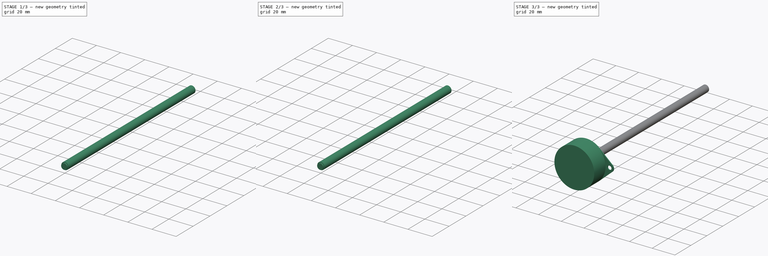
[diagram: build sequence overview — one tinted view per stage of 3, left to right]
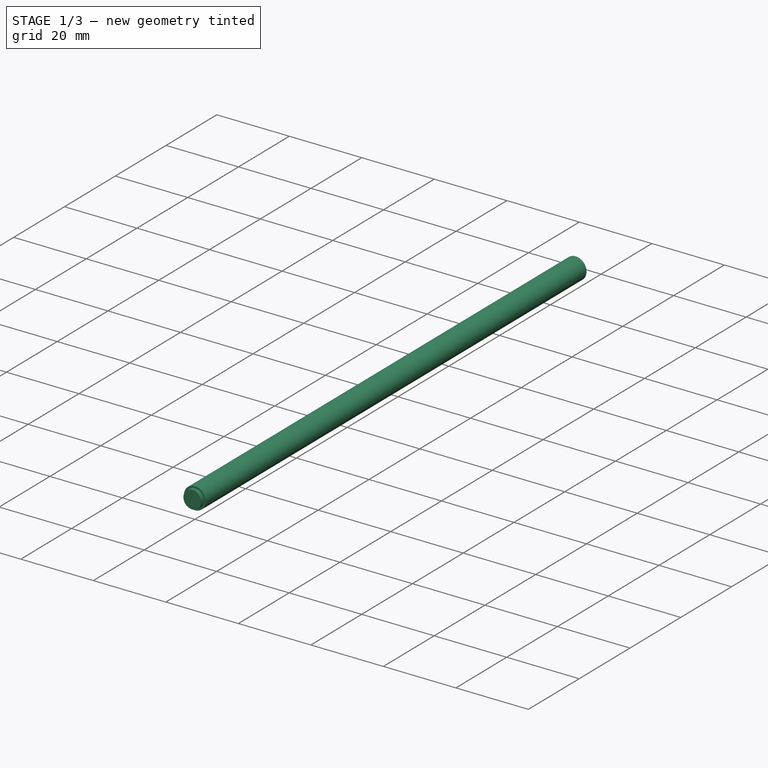
[diagram: stage 1 of 3 — iso view after this stage's code; geometry added in this stage tinted green]
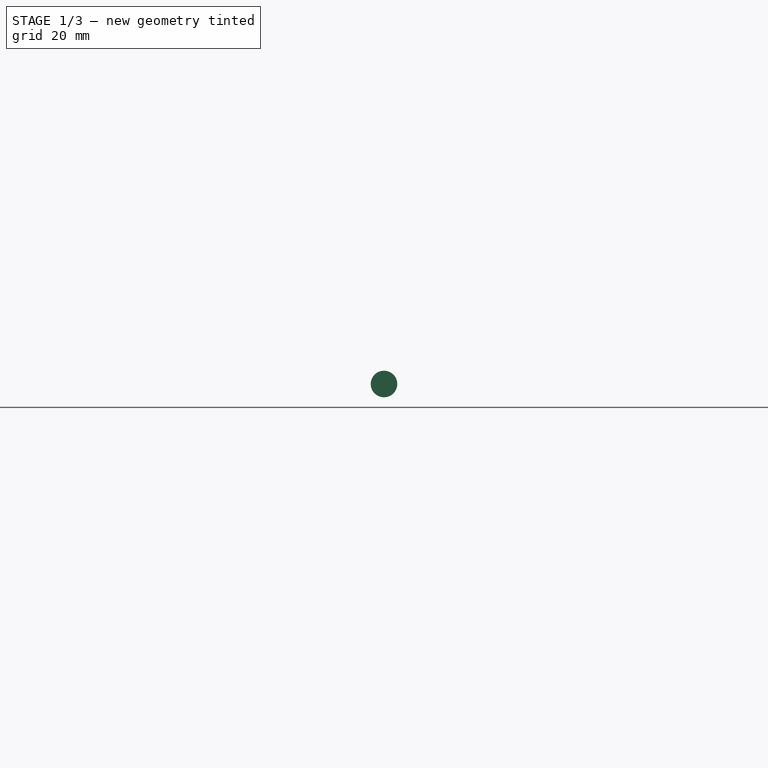
[diagram: stage 1 of 3 — front view after this stage's code; geometry added in this stage tinted green]
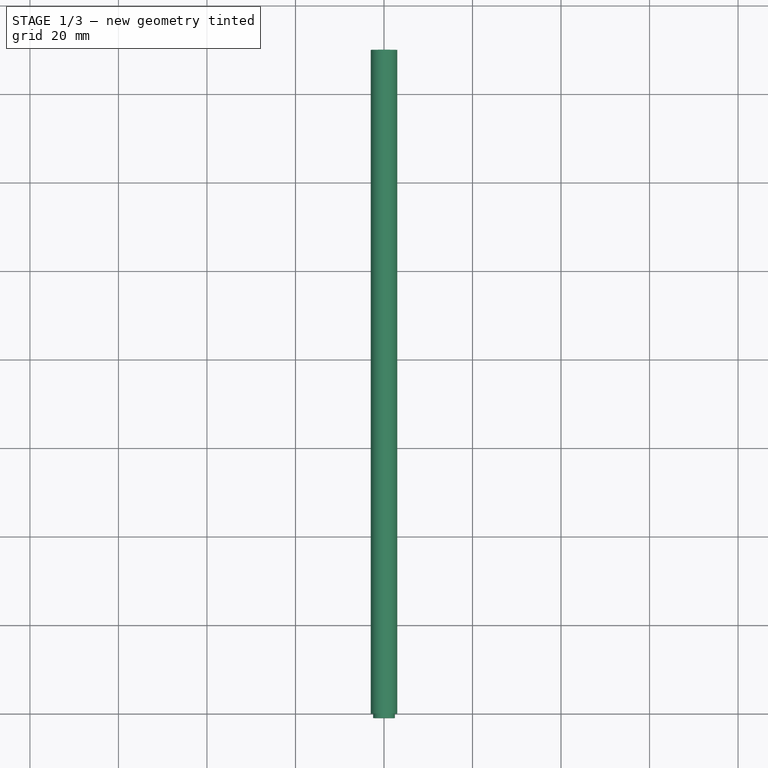
[diagram: stage 1 of 3 — top view after this stage's code; geometry added in this stage tinted green]
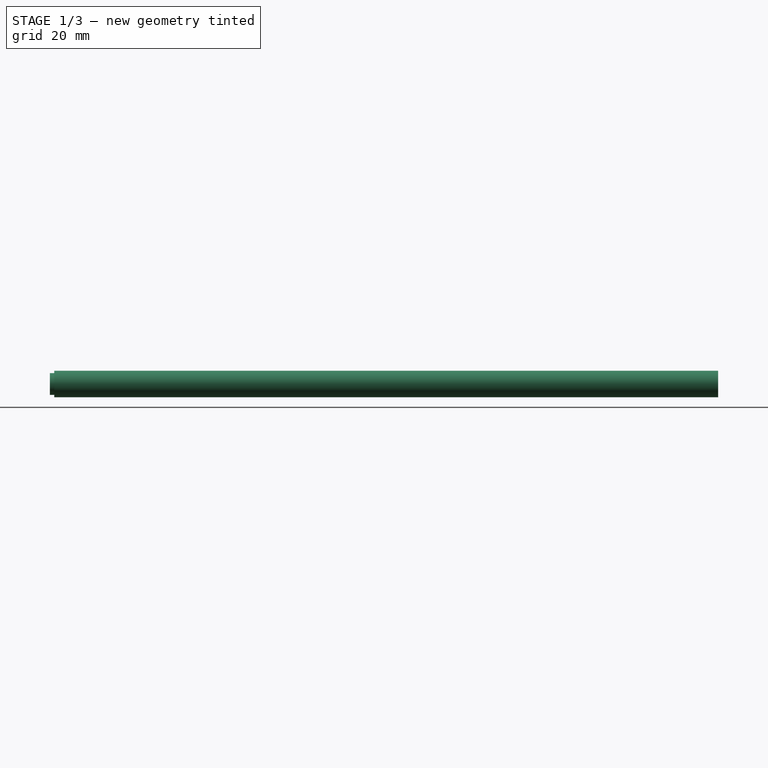
[diagram: stage 1 of 3 — right view after this stage's code; geometry added in this stage tinted green]
FCSTD DOCUMENT  (FreeCAD 0.19R24012 (Git))
Label: EL-axis v4
License: All rights reserved
LicenseURL: http://en.wikipedia.org/wiki/All_rights_reserved
objects: Sketcher::SketchObject×5, PartDesign::Body×4, PartDesign::Pad×3, PartDesign::Revolution×1, PartDesign::FeatureBase×1, Part::FeaturePython×1, App::Part×1
note: 19 computed .brp shape members not serialized (recipe doc carries the construction recipe); baked Part::Feature solids carry a one-line shape summary decoded from their .brp

FEATURE [PartDesign::Body] Body  label="bd_pipe_left"
  Group = -> [Clone]
  Origin = -> Origin031
  Placement = pos=(20,0,0) rot=(0,0,1;0rad)
  Tip = -> Clone
  expr: .Placement.Base.x = <<p>>.Constraints.pipes_dist / 2
FEATURE [Sketcher::SketchObject] Sketch019
  FullyConstrained = false
  MapMode = 5
  Placement = pos=(0,0,0) rot=(1,0,0;1.5708rad)
  sketch-geometry (2):
    g0: Circle CenterX=0 CenterY=0 CenterZ=0 NormalX=0 NormalY=0 NormalZ=1 AngleXU=0 Radius=2.025
    g1: Circle CenterX=0 CenterY=0 CenterZ=0 NormalX=0 NormalY=0 NormalZ=1 AngleXU=0 Radius=3
  constraints (4):
    c: Coincident(g0,g-1)
    c: Coincident(g1,g0)
    c: Diameter(g1) = 6
    c: Diameter(g0) = 4.05
FEATURE [PartDesign::Pad] Pad008
  Direction = (1,1,1)
  Length = 150
  Length2 = 100
  Placement = pos=(0,0,0) rot=(1,0,0;1.5708rad)
  Profile = -> Sketch019
  Reversed = true
  Type = 0
FEATURE [PartDesign::Body] Body024  label="bd_pipe_right"
  Group = -> [Sketch019,Pad008]
  Origin = -> Origin032
  Placement = pos=(-20,0,0) rot=(0,0,1;0rad)
  Tip = -> Pad008
  expr: .Placement.Base.x = -<<p>>.Constraints.pipes_dist / 2
FEATURE [Part::FeaturePython] ScrewTap  label="M6x150.0-ScrewTap"  # Fasteners workbench fastener (typed FeaturePython)
  Placement = pos=(0,0,0) rot=(1,0,0;1.5708rad)
  diameter = 8
  invert = false
  length = 150
  matchOuter = false
  offset = 0
  thread = false
  expr: length = 150
FEATURE [App::Part] Part  label="Parts"
  Group = -> [Body023,Body013,ScrewTap]
  Origin = -> Origin
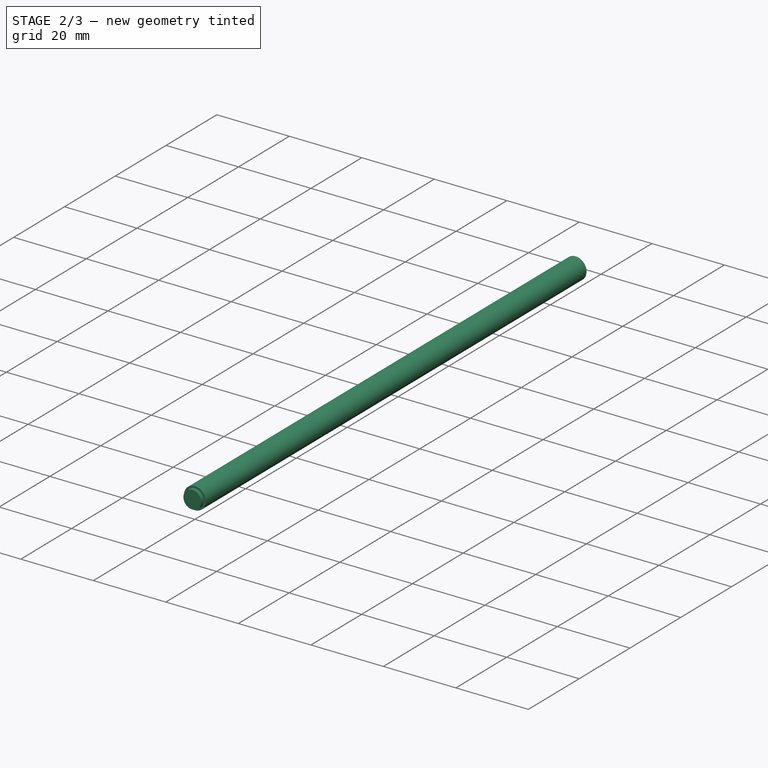
[diagram: stage 2 of 3 — iso view after this stage's code; geometry added in this stage tinted green]
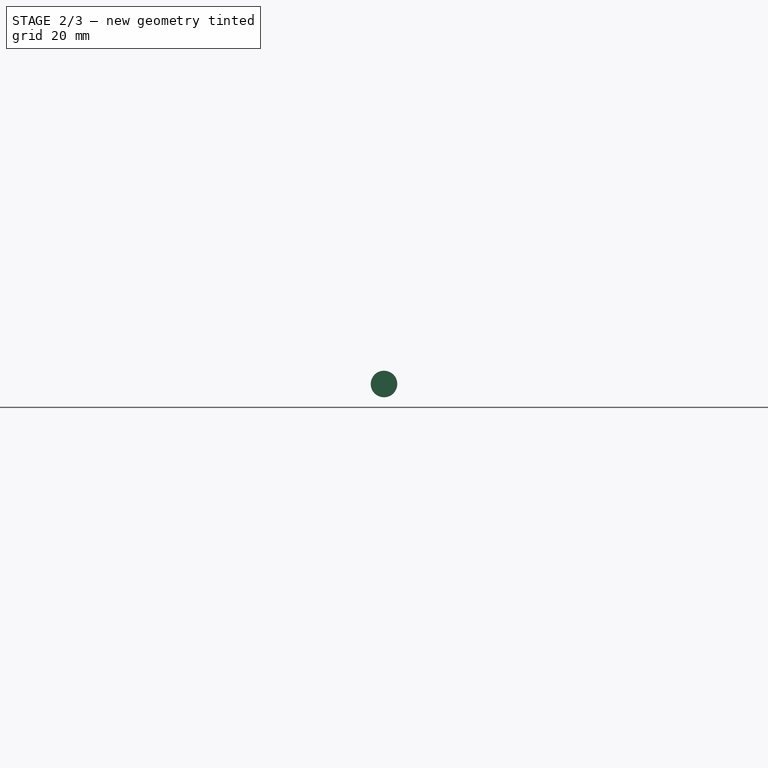
[diagram: stage 2 of 3 — front view after this stage's code; geometry added in this stage tinted green]
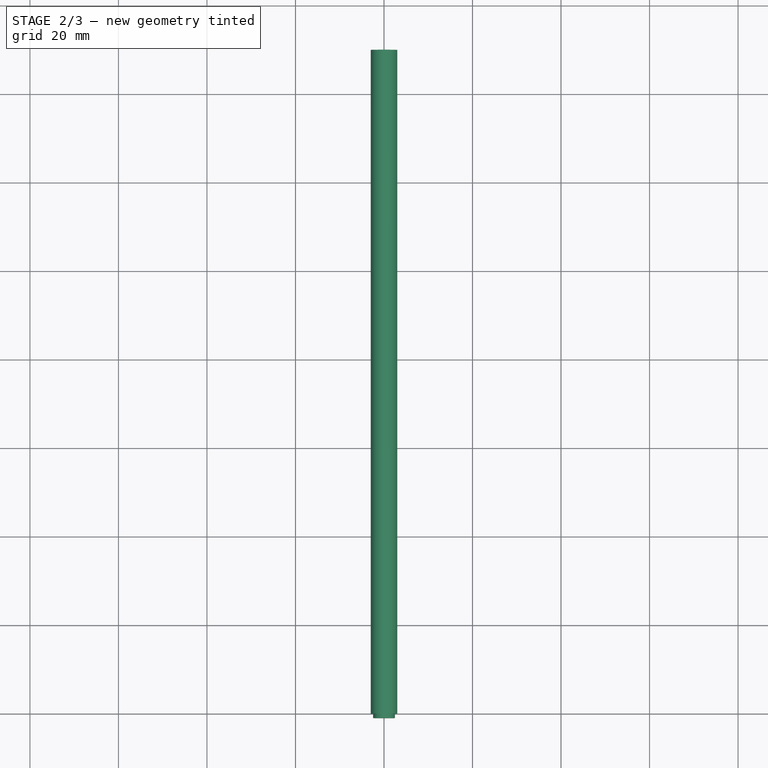
[diagram: stage 2 of 3 — top view after this stage's code; geometry added in this stage tinted green]
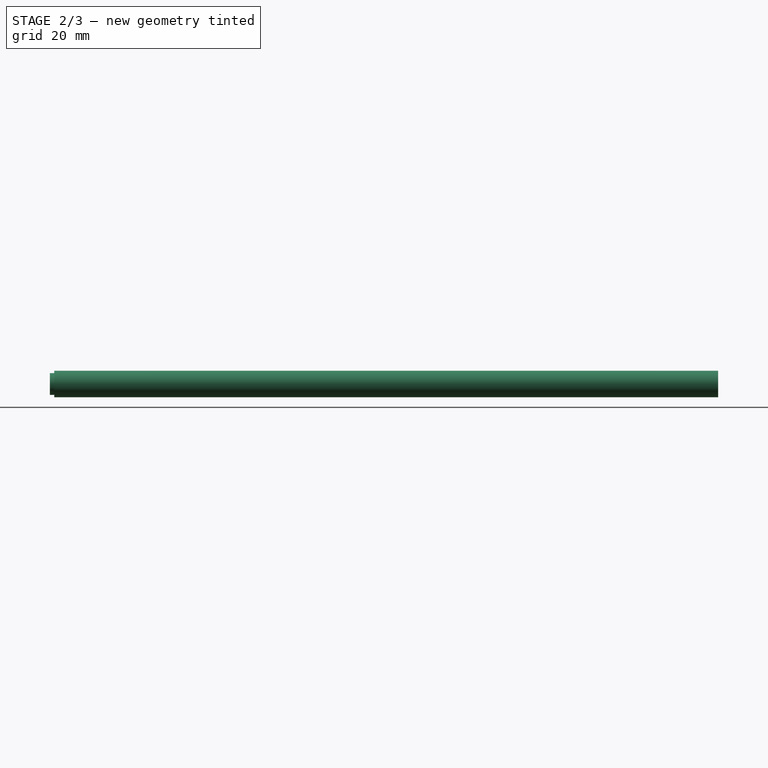
[diagram: stage 2 of 3 — right view after this stage's code; geometry added in this stage tinted green]
FEATURE [PartDesign::Body] Body023  label="motor_A"
  Group = -> [Sketch017,Revolution001,Sketch018,Pad007]
  Origin = -> Origin030
  Placement = pos=(0,-38,0) rot=(0,0,1;0rad)
  Tip = -> Pad007
FEATURE [Sketcher::SketchObject] Sketch006
  FullyConstrained = false
  MapMode = 5
  Placement = pos=(0,0,0) rot=(1,0,0;1.5708rad)
  sketch-geometry (2):
    g0: Circle CenterX=0 CenterY=0 CenterZ=0 NormalX=0 NormalY=0 NormalZ=1 AngleXU=0 Radius=2.025
    g1: Circle CenterX=0 CenterY=0 CenterZ=0 NormalX=0 NormalY=0 NormalZ=1 AngleXU=0 Radius=3
  constraints (4):
    c: Coincident(g0,g-1)
    c: Coincident(g1,g0)
    c: Diameter(g1) = 6
    c: Diameter(g0) = 4.05
FEATURE [PartDesign::Pad] Pad002
  Direction = (1,1,1)
  Length = 150
  Length2 = 100
  Placement = pos=(0,0,0) rot=(1,0,0;1.5708rad)
  Profile = -> Sketch006
  Reversed = true
  Type = 0
FEATURE [PartDesign::Body] Body013  label="pipe_6"
  Group = -> [Sketch006,Pad002]
  Origin = -> Origin018
  Tip = -> Pad002
FEATURE [PartDesign::FeatureBase] Clone
  BaseFeature = -> Body013
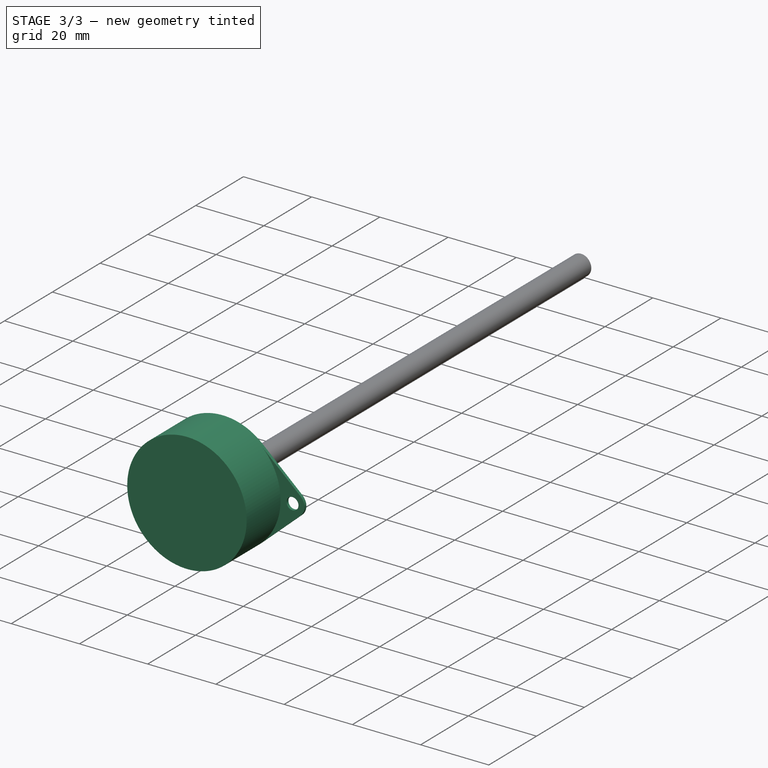
[diagram: stage 3 of 3 — iso view after this stage's code; geometry added in this stage tinted green]
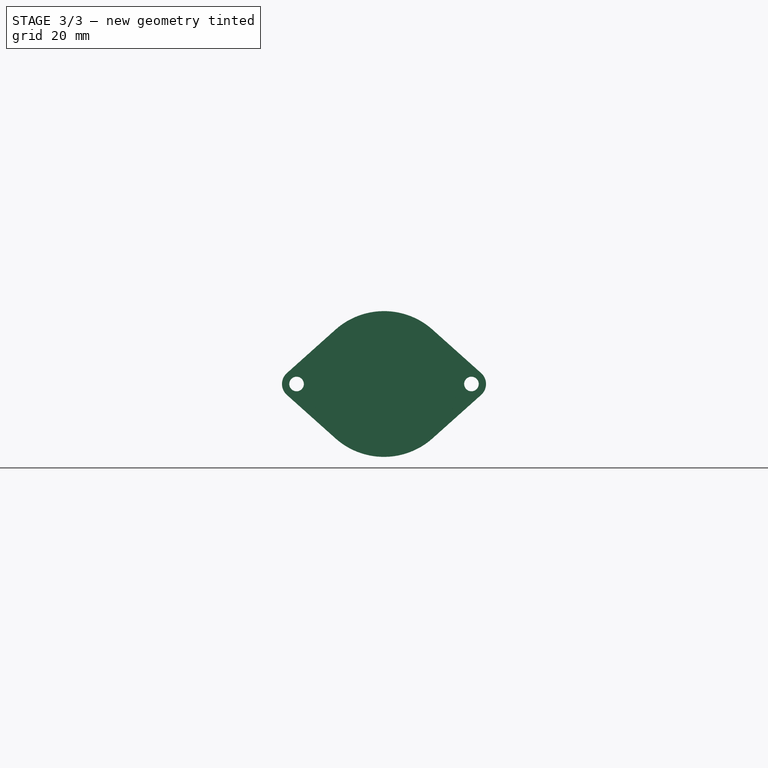
[diagram: stage 3 of 3 — front view after this stage's code; geometry added in this stage tinted green]
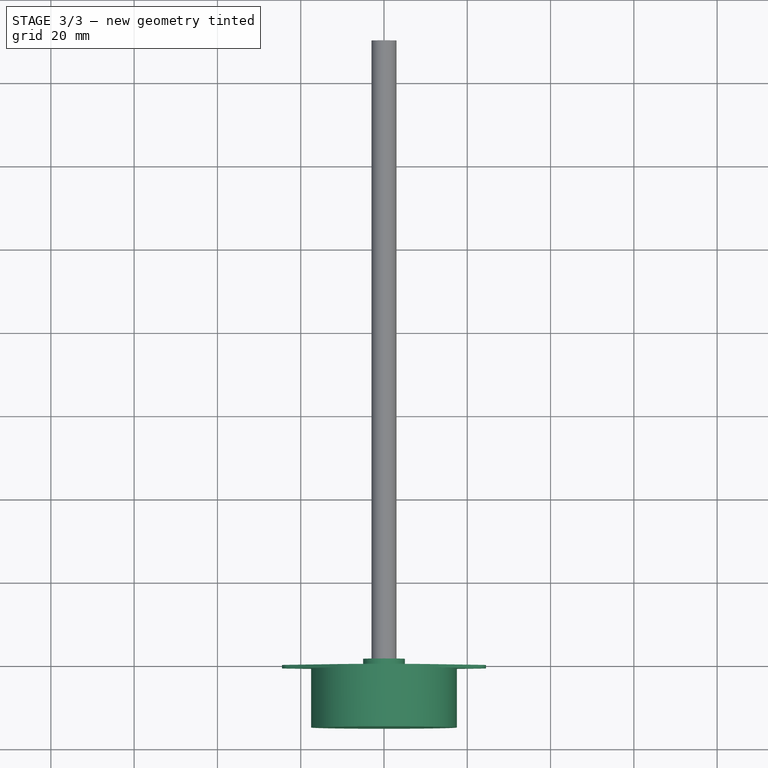
[diagram: stage 3 of 3 — top view after this stage's code; geometry added in this stage tinted green]
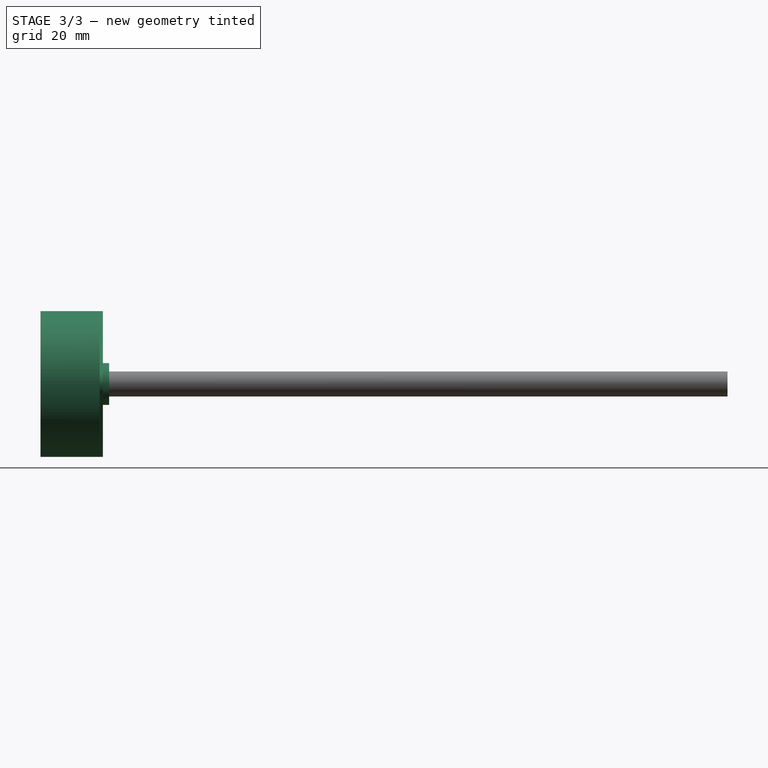
[diagram: stage 3 of 3 — right view after this stage's code; geometry added in this stage tinted green]
FEATURE [Sketcher::SketchObject] Sketch  label="p"
  FullyConstrained = false
  MapMode = 5
  sketch-geometry (5):
    g0: Circle CenterX=-39.9488 CenterY=29.7695 CenterZ=0 NormalX=0 NormalY=0 NormalZ=1 AngleXU=0 Radius=3.025
    g1: Circle CenterX=-39.9488 CenterY=29.7695 CenterZ=0 NormalX=0 NormalY=0 NormalZ=1 AngleXU=0 Radius=2
    g2: Circle CenterX=-39.9488 CenterY=19.7823 CenterZ=0 NormalX=0 NormalY=0 NormalZ=1 AngleXU=0 Radius=3.05
    g3: Circle CenterX=-20 CenterY=0 CenterZ=0 NormalX=0 NormalY=0 NormalZ=1 AngleXU=0 Radius=3.025
    g4: Circle CenterX=20 CenterY=0 CenterZ=0 NormalX=0 NormalY=0 NormalZ=1 AngleXU=0 Radius=3.025
  constraints (9):
    c: Coincident(g1,g0)
    c: Diameter(g1) = 4  'd_pipe6_int'
    c: Diameter(g0) = 6.05  'd_pipe6'
    c: Diameter(g2) = 6.1  'd_pipe6_free'
    c: PointOnObject(g3,g-1)
    c: Equal(g3,g4)
    c: Equal(g4,g0)
    c: Symmetric(g3,g4,g-1)
    c: DistanceX(g3,g4) = 40  'pipes_dist'
FEATURE [Sketcher::SketchObject] Sketch017
  FullyConstrained = false
  MapMode = 5
  expr: Constraints[18] = 2 / 2
  expr: Constraints[19] = 10 / 2
  expr: Constraints[20] = 35 / 2
  sketch-geometry (8):
    g0: LineSegment StartX=0 StartY=7 StartZ=0 EndX=0 EndY=-15 EndZ=0
    g1: LineSegment StartX=0 StartY=7 StartZ=0 EndX=1 EndY=7 EndZ=0
    g2: LineSegment StartX=1 StartY=7 StartZ=0 EndX=1 EndY=1.5 EndZ=0
    g3: LineSegment StartX=1 StartY=1.5 StartZ=0 EndX=5 EndY=1.5 EndZ=0
    g4: LineSegment StartX=5 StartY=1.5 StartZ=0 EndX=5 EndY=0 EndZ=0
    g5: LineSegment StartX=5 StartY=0 StartZ=0 EndX=17.5 EndY=0 EndZ=0
    g6: LineSegment StartX=17.5 StartY=0 StartZ=0 EndX=17.5 EndY=-15 EndZ=0
    g7: LineSegment StartX=17.5 StartY=-15 StartZ=0 EndX=0 EndY=-15 EndZ=0
  constraints (24):
    c: PointOnObject(g0,g-2)
    c: PointOnObject(g0,g-2)
    c: Coincident(g1,g0)
    c: Horizontal(g1)
    c: Coincident(g2,g1)
    c: Vertical(g2)
    c: Coincident(g3,g2)
    c: Horizontal(g3)
    c: Coincident(g4,g3)
    c: Vertical(g4)
    c: PointOnObject(g4,g-1)
    c: Coincident(g5,g4)
    c: PointOnObject(g5,g-1)
    c: Coincident(g6,g5)
    c: Vertical(g6)
    c: Coincident(g7,g6)
    c: Horizontal(g7)
    c: Coincident(g0,g7)
    c: DistanceX(g1,g1) = 1
    c: DistanceX(g-1,g3) = 5
    c: DistanceX(g-1,g5) = 17.5
    c: DistanceY(g0,g-1) = 15
    c: DistanceY(g-1,g2) = 1.5
    c: DistanceY(g-1,g0) = 7
FEATURE [PartDesign::Revolution] Revolution001
  Angle = 360
  Axis = (0,1,0)
  Base = (0,0,0)
  Profile = -> Sketch017
  ReferenceAxis = -> Sketch017 [V_Axis]
FEATURE [Sketcher::SketchObject] Sketch018
  ExternalGeometry = -> [Revolution001]
  FullyConstrained = false
  MapMode = 5
  Placement = pos=(0,0,0) rot=(0,0.707107,0.707107;3.14159rad)
  Support = -> [Revolution001]
  sketch-geometry (12):
    g0: Circle CenterX=-21 CenterY=0 CenterZ=0 NormalX=0 NormalY=0 NormalZ=1 AngleXU=0 Radius=1.75
    g1: Circle CenterX=21 CenterY=0 CenterZ=0 NormalX=0 NormalY=0 NormalZ=1 AngleXU=0 Radius=1.75
    g2: ArcOfCircle CenterX=0 CenterY=0 CenterZ=0 NormalX=0 NormalY=0 NormalZ=1 AngleXU=0 Radius=17.5 StartAngle=0.841069 EndAngle=2.30052
    g3: ArcOfCircle CenterX=0 CenterY=0 CenterZ=0 NormalX=0 NormalY=0 NormalZ=1 AngleXU=0 Radius=17.5 StartAngle=3.98266 EndAngle=5.44212
    g4: ArcOfCircle CenterX=-21 CenterY=0 CenterZ=0 NormalX=0 NormalY=0 NormalZ=1 AngleXU=0 Radius=3.5 StartAngle=2.30052 EndAngle=3.98266
    g5: ArcOfCircle CenterX=21 CenterY=0 CenterZ=0 NormalX=0 NormalY=0 NormalZ=1 AngleXU=0 Radius=3.5 StartAngle=5.44212 EndAngle=7.12425
    g6: LineSegment StartX=-23.3333 StartY=2.60875 StartZ=0 EndX=-11.6667 EndY=13.0437 EndZ=0
    g7: LineSegment StartX=11.6667 StartY=13.0437 StartZ=0 EndX=23.3333 EndY=2.60875 EndZ=0
    g8: LineSegment StartX=23.3333 StartY=-2.60875 StartZ=0 EndX=11.6667 EndY=-13.0437 EndZ=0
    g9: LineSegment StartX=-11.6667 StartY=-13.0437 StartZ=0 EndX=-23.3333 EndY=-2.60875 EndZ=0
    g10: GeomPoint X=-24.5 Y=0 Z=0
    g11: GeomPoint X=24.5 Y=0 Z=0
  constraints (25):
    c: PointOnObject(g0,g-1)
    c: Equal(g0,g1)
    c: Diameter(g1) = 3.5
    c: Symmetric(g0,g1,g-1)
    c: DistanceX(g0,g1) = 42
    c: Coincident(g2,g-1)
    c: Coincident(g3,g2)
    c: Coincident(g4,g0)
    c: Coincident(g5,g1)
    c: Equal(g2,g-3)
    c: Equal(g-3,g3)
    c: Tangent(g6,g2) = 1.5708
    c: Tangent(g7,g2) = 1.5708
    c: Tangent(g7,g5) = 1.5708
    c: Tangent(g8,g5) = 1.5708
    c: Tangent(g8,g3) = 1.5708
    c: Tangent(g9,g3) = 1.5708
    c: Tangent(g9,g4) = 1.5708
    c: Equal(g4,g5)
    c: PointOnObject(g10,g4)
    c: PointOnObject(g11,g5)
    c: Horizontal(g10,g0)
    c: Horizontal(g1,g11)
    c: DistanceX(g10,g11) = 49
    c: Tangent(g6,g4) = 1.5708
FEATURE [PartDesign::Pad] Pad007
  BaseFeature = -> Revolution001
  Direction = (1,1,1)
  Length = 0.8
  Length2 = 100
  Profile = -> Sketch018
  Reversed = true
  Type = 0
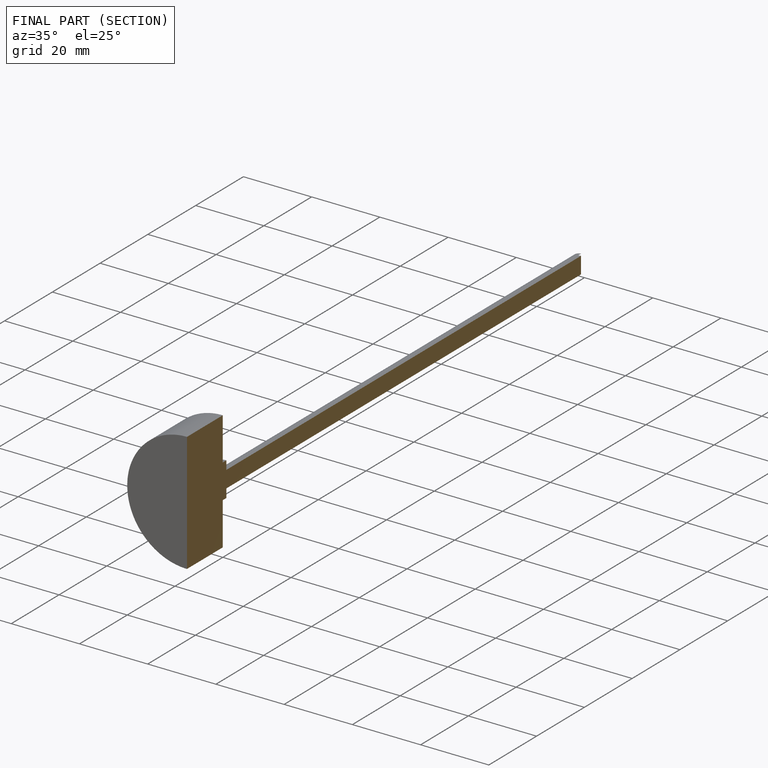
[diagram: finished part — half-section view (interior)]
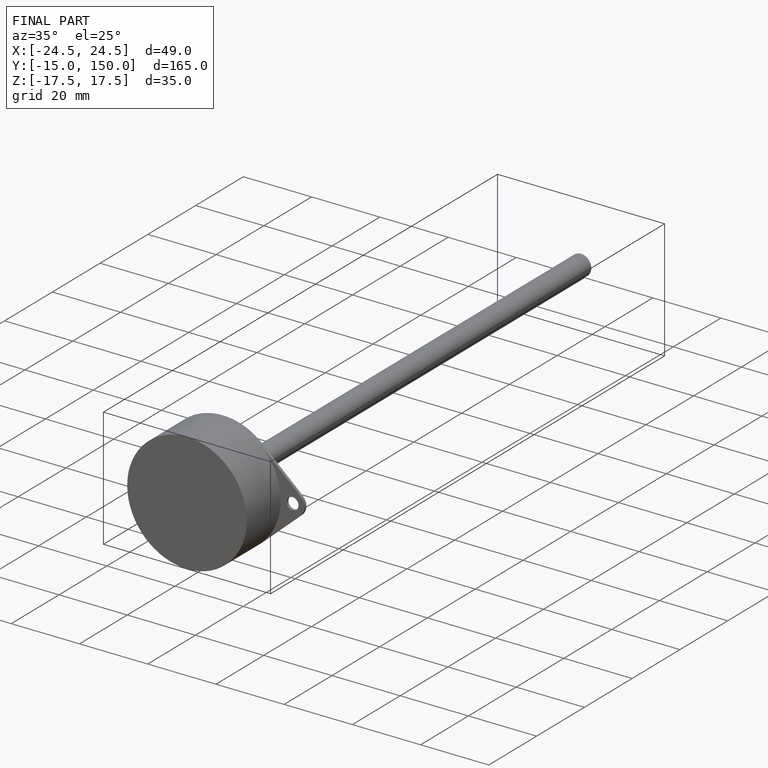
[diagram: finished part — iso view with bounding-box wireframe]
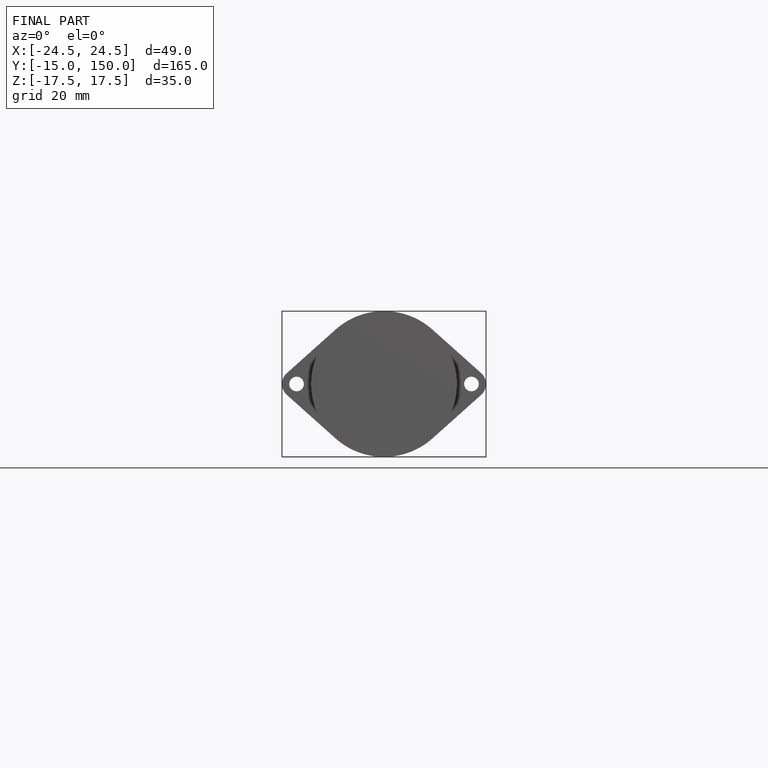
[diagram: finished part — front view with bounding-box wireframe]
